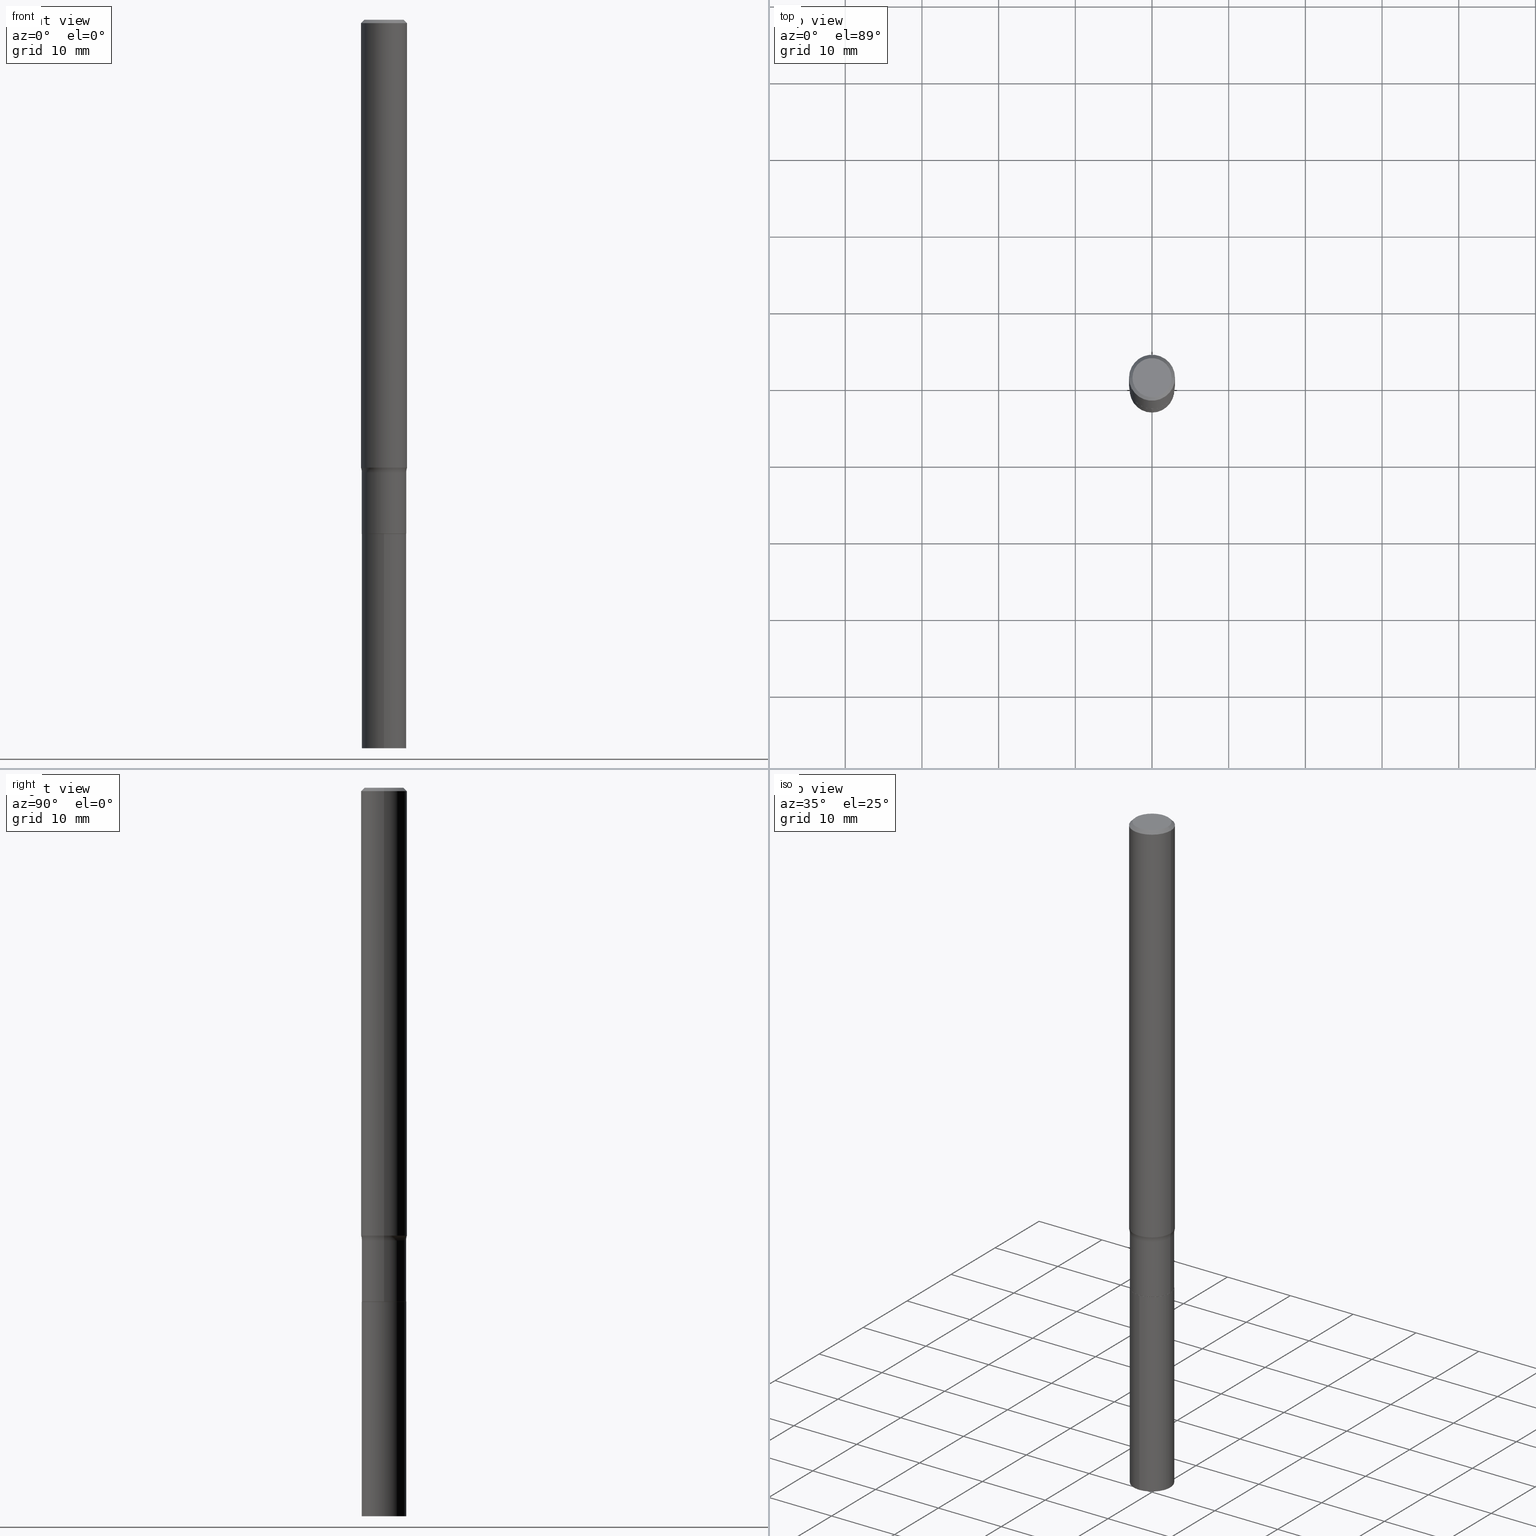
[diagram: canonical four-view strip — front | top / right | iso, engineering-drawing reading convention]
A machine part, canonical four-view strip (front | top / right | iso — engineering-drawing reading convention). The complete STEP part file that produces these views, byte-faithful:
ISO-10303-21;
HEADER;
FILE_DESCRIPTION (( 'STEP AP203' ),
    '1' );
FILE_NAME ('67844.STEP',
    '2024-04-19T16:42:29',
    ( '' ),
    ( '' ),
    'SwSTEP 2.0',
    'SolidWorks 2023',
    '' );
FILE_SCHEMA (( 'CONFIG_CONTROL_DESIGN' ));
ENDSEC;

DATA;
#1 = EDGE_CURVE ( 'NONE', #262, #442, #53, .T. ) ;
#2 = TOROIDAL_SURFACE ( 'NONE', #226, 0.1941499999999999893, 0.08000000000000002942 ) ;
#3 = CC_DESIGN_APPROVAL ( #343, ( #44 ) ) ;
#4 = EDGE_CURVE ( 'NONE', #384, #213, #346, .T. ) ;
#5 = ORIENTED_EDGE ( 'NONE', *, *, #102, .T. ) ;
#6 = ORIENTED_EDGE ( 'NONE', *, *, #310, .T. ) ;
#7 = CIRCLE ( 'NONE', #426, 0.1003850000000000159 ) ;
#8 = ORIENTED_EDGE ( 'NONE', *, *, #115, .T. ) ;
#9 = ADVANCED_FACE ( 'NONE', ( #234 ), #460, .T. ) ;
#10 = ORIENTED_EDGE ( 'NONE', *, *, #439, .F. ) ;
#11 = CIRCLE ( 'NONE', #69, 0.1141499999999999598 ) ;
#12 = AXIS2_PLACEMENT_3D ( 'NONE', #386, #210, #207 ) ;
#13 = CALENDAR_DATE ( 2024, 19, 4 ) ;
#14 = DIRECTION ( 'NONE',  ( -2.445468806185136597E-29, 3.491481338843145583E-15, 1.000000000000000000 ) ) ;
#15 = CC_DESIGN_DATE_AND_TIME_ASSIGNMENT ( #383, #117, ( #345 ) ) ;
#16 = DIRECTION ( 'NONE',  ( -2.445468806185136877E-29, 3.491481338843145188E-15, 1.000000000000000000 ) ) ;
#17 = FACE_OUTER_BOUND ( 'NONE', #169, .T. ) ;
#18 = EDGE_LOOP ( 'NONE', ( #409, #287, #411, #185 ) ) ;
#19 = COORDINATED_UNIVERSAL_TIME_OFFSET ( 5, 0, .BEHIND. ) ;
#20 = CIRCLE ( 'NONE', #429, 0.1141499999999999598 ) ;
#21 = PLANE ( 'NONE',  #219 ) ;
#22 = DIRECTION ( 'NONE',  ( 1.000000000000000000, -6.982962677686266711E-15, 4.876176775795935793E-29 ) ) ;
#23 = CARTESIAN_POINT ( 'NONE',  ( -0.1136500000000000010, -8.401045021770521406E-15, -2.638200000000000323 ) ) ;
#24 = ADVANCED_FACE ( 'NONE', ( #203 ), #177, .T. ) ;
#25 = MECHANICAL_CONTEXT ( 'NONE', #362, 'mechanical' ) ;
#26 = CARTESIAN_POINT ( 'NONE',  ( 6.451635804477628369E-29, -9.211226068135987462E-15, -2.638200000000000323 ) ) ;
#27 = ORIENTED_EDGE ( 'NONE', *, *, #298, .F. ) ;
#28 = CARTESIAN_POINT ( 'NONE',  ( 5.683269505574258330E-29, -8.114202631471472021E-15, -2.324000000000000288 ) ) ;
#29 = CARTESIAN_POINT ( 'NONE',  ( 3.507850874923593654E-46, -5.008281372579124849E-32, -1.434428795841294606E-17 ) ) ;
#30 = DIRECTION ( 'NONE',  ( -2.445468806185136597E-29, 3.491481338843145583E-15, 1.000000000000000000 ) ) ;
#31 = EDGE_LOOP ( 'NONE', ( #440, #447, #167, #8 ) ) ;
#32 = FACE_OUTER_BOUND ( 'NONE', #184, .T. ) ;
#33 = CARTESIAN_POINT ( 'NONE',  ( 0.1180999999999999966, -8.720764054544245267E-16, -0.01771500000000009872 ) ) ;
#34 = VECTOR ( 'NONE', #128, 39.37007874015748143 ) ;
#35 = EDGE_CURVE ( 'NONE', #384, #416, #7, .T. ) ;
#36 = MANIFOLD_SOLID_BREP ( 'Body-Move/Copy2[2]', #104 ) ;
#37 = ORIENTED_EDGE ( 'NONE', *, *, #231, .T. ) ;
#38 = VECTOR ( 'NONE', #452, 39.37007874015748143 ) ;
#39 = EDGE_CURVE ( 'NONE', #327, #150, #301, .T. ) ;
#40 = EDGE_LOOP ( 'NONE', ( #5, #422 ) ) ;
#41 = ORIENTED_EDGE ( 'NONE', *, *, #4, .T. ) ;
#42 = CARTESIAN_POINT ( 'NONE',  ( -0.1136500000000000010, -8.403694248944633396E-15, -2.638200000000000323 ) ) ;
#43 = APPROVAL_DATE_TIME ( #304, #343 ) ;
#44 = PRODUCT_DEFINITION ( 'UNKNOWN', '', #57, #326 ) ;
#45 = EDGE_LOOP ( 'NONE', ( #142, #260, #192, #180 ) ) ;
#46 = VECTOR ( 'NONE', #145, 39.37007874015748143 ) ;
#47 = ORIENTED_EDGE ( 'NONE', *, *, #68, .T. ) ;
#48 = DIRECTION ( 'NONE',  ( -2.445468806185136597E-29, 3.491481338843145583E-15, 1.000000000000000000 ) ) ;
#49 = DIRECTION ( 'NONE',  ( 1.000000000000000000, -6.982962677686268288E-15, 4.883557194083112901E-29 ) ) ;
#50 = CARTESIAN_POINT ( 'NONE',  ( 0.000000000000000000, 0.000000000000000000, 0.000000000000000000 ) ) ;
#51 = DIRECTION ( 'NONE',  ( -2.445468806185136597E-29, 3.491481338843145583E-15, 1.000000000000000000 ) ) ;
#52 = LINE ( 'NONE', #88, #34 ) ;
#53 = LINE ( 'NONE', #453, #307 ) ;
#54 = EDGE_CURVE ( 'NONE', #369, #327, #164, .T. ) ;
#55 = DIRECTION ( 'NONE',  ( -2.445468806185136597E-29, 3.491481338843145583E-15, 1.000000000000000000 ) ) ;
#56 = CONICAL_SURFACE ( 'NONE', #261, 0.1136500000000000010, 0.7853981633972775267 ) ;
#57 = PRODUCT_DEFINITION_FORMATION_WITH_SPECIFIED_SOURCE ( 'ANY', '', #160, .NOT_KNOWN. ) ;
#58 = CARTESIAN_POINT ( 'NONE',  ( 6.451635804477628369E-29, -9.211226068135987462E-15, -2.638200000000000323 ) ) ;
#59 = ORIENTED_EDGE ( 'NONE', *, *, #418, .T. ) ;
#60 = DIRECTION ( 'NONE',  ( 1.000000000000000000, -6.982962677686257244E-15, 0.000000000000000000 ) ) ;
#61 = CARTESIAN_POINT ( 'NONE',  ( 6.451635804477628369E-29, -9.211226068135987462E-15, -2.638200000000000323 ) ) ;
#62 = DIRECTION ( 'NONE',  ( -6.982962677686264344E-15, -1.000000000000000000, 4.786417860121354983E-15 ) ) ;
#63 = ORIENTED_EDGE ( 'NONE', *, *, #149, .F. ) ;
#64 = ADVANCED_FACE ( 'NONE', ( #83 ), #271, .F. ) ;
#65 = AXIS2_PLACEMENT_3D ( 'NONE', #122, #275, #427 ) ;
#66 = CC_DESIGN_APPROVAL ( #291, ( #345 ) ) ;
#67 = DIRECTION ( 'NONE',  ( -6.982962677686265922E-15, -1.000000000000000000, 3.500087051895992261E-15 ) ) ;
#68 = EDGE_CURVE ( 'NONE', #416, #384, #401, .T. ) ;
#69 = AXIS2_PLACEMENT_3D ( 'NONE', #95, #30, #281 ) ;
#70 = DIMENSIONAL_EXPONENTS ( 1.000000000000000000, 0.000000000000000000, 0.000000000000000000, 0.000000000000000000, 0.000000000000000000, 0.000000000000000000, 0.000000000000000000 ) ;
#71 = VECTOR ( 'NONE', #278, 39.37007874015748143 ) ;
#72 = VECTOR ( 'NONE', #464, 39.37007874015748143 ) ;
#73 = ORIENTED_EDGE ( 'NONE', *, *, #35, .T. ) ;
#74 = LINE ( 'NONE', #42, #121 ) ;
#75 = ADVANCED_FACE ( 'NONE', ( #424 ), #21, .F. ) ;
#76 = ORIENTED_EDGE ( 'NONE', *, *, #310, .F. ) ;
#77 = ORIENTED_EDGE ( 'NONE', *, *, #445, .T. ) ;
#78 = LOCAL_TIME ( 12, 42, 29.00000000000000000, #195 ) ;
#79 = EDGE_LOOP ( 'NONE', ( #238, #77, #360, #98 ) ) ;
#80 = APPROVAL_STATUS ( 'not_yet_approved' ) ;
#81 = DIRECTION ( 'NONE',  ( 1.000000000000000000, -6.982962677686266711E-15, 4.875668750515085695E-29 ) ) ;
#82 = LINE ( 'NONE', #302, #46 ) ;
#83 = FACE_OUTER_BOUND ( 'NONE', #125, .T. ) ;
#84 = AXIS2_PLACEMENT_3D ( 'NONE', #136, #309, #22 ) ;
#85 = LINE ( 'NONE', #425, #112 ) ;
#86 = ORIENTED_EDGE ( 'NONE', *, *, #288, .F. ) ;
#87 = DIRECTION ( 'NONE',  ( 1.000000000000000000, -6.982962677686266711E-15, 4.876176775795936353E-29 ) ) ;
#88 = CARTESIAN_POINT ( 'NONE',  ( 0.1181000000000001493, -8.246878922347491501E-16, 5.758764772215008148E-30 ) ) ;
#89 = DIRECTION ( 'NONE',  ( -1.000000000000000000, 6.982962677686266711E-15, 0.000000000000000000 ) ) ;
#90 = EDGE_CURVE ( 'NONE', #276, #150, #458, .T. ) ;
#91 = FACE_OUTER_BOUND ( 'NONE', #108, .T. ) ;
#92 = CARTESIAN_POINT ( 'NONE',  ( 6.451635804477628369E-29, -9.211226068135987462E-15, -2.638200000000000323 ) ) ;
#93 = AXIS2_PLACEMENT_3D ( 'NONE', #26, #353, #168 ) ;
#94 = FACE_OUTER_BOUND ( 'NONE', #146, .T. ) ;
#95 = CARTESIAN_POINT ( 'NONE',  ( 5.683269505574258330E-29, -8.114202631471472021E-15, -2.324000000000000288 ) ) ;
#96 = CC_DESIGN_PERSON_AND_ORGANIZATION_ASSIGNMENT ( #174, #404, ( #57 ) ) ;
#97 = CYLINDRICAL_SURFACE ( 'NONE', #65, 0.1141500000000000015 ) ;
#98 = ORIENTED_EDGE ( 'NONE', *, *, #1, .F. ) ;
#99 = AXIS2_PLACEMENT_3D ( 'NONE', #211, #244, #129 ) ;
#100 =( GEOMETRIC_REPRESENTATION_CONTEXT ( 3 ) GLOBAL_UNCERTAINTY_ASSIGNED_CONTEXT ( ( #365 ) ) GLOBAL_UNIT_ASSIGNED_CONTEXT ( ( #392, #315, #214 ) ) REPRESENTATION_CONTEXT ( 'NONE', 'WORKASPACE' ) );
#101 = LOCAL_TIME ( 12, 42, 29.00000000000000000, #272 ) ;
#102 = EDGE_CURVE ( 'NONE', #150, #276, #283, .T. ) ;
#103 = EDGE_LOOP ( 'NONE', ( #73, #47 ) ) ;
#104 = CLOSED_SHELL ( 'NONE', ( #393, #466, #259, #64, #455, #9, #268, #242, #24, #408, #359, #279 ) ) ;
#105 = VECTOR ( 'NONE', #289, 39.37007874015748143 ) ;
#106 = ORIENTED_EDGE ( 'NONE', *, *, #220, .F. ) ;
#107 = PRODUCT_RELATED_PRODUCT_CATEGORY ( 'detail', '', ( #160 ) ) ;
#108 = EDGE_LOOP ( 'NONE', ( #436, #295 ) ) ;
#109 = VERTEX_POINT ( 'NONE', #348 ) ;
#110 = CARTESIAN_POINT ( 'NONE',  ( 4.332147990156994116E-31, -6.185159191760666697E-17, -0.01771500000000009872 ) ) ;
#111 = PERSON_AND_ORGANIZATION_ROLE ( 'design_supplier' ) ;
#112 = VECTOR ( 'NONE', #381, 39.37007874015748143 ) ;
#113 = PERSON_AND_ORGANIZATION_ROLE ( 'creator' ) ;
#114 = CARTESIAN_POINT ( 'NONE',  ( 4.332147990156994116E-31, -6.185159191760666697E-17, -0.01771500000000009872 ) ) ;
#115 = EDGE_CURVE ( 'NONE', #442, #331, #11, .T. ) ;
#116 = LINE ( 'NONE', #300, #38 ) ;
#117 = DATE_TIME_ROLE ( 'classification_date' ) ;
#118 = CARTESIAN_POINT ( 'NONE',  ( -7.971051896578226363E-16, -0.1141500000000092024, -2.638199999999999878 ) ) ;
#119 = CALENDAR_DATE ( 2024, 19, 4 ) ;
#120 = DIRECTION ( 'NONE',  ( 6.982962677686265922E-15, 1.000000000000000000, -3.500087051895992261E-15 ) ) ;
#121 = VECTOR ( 'NONE', #154, 39.37007874015748143 ) ;
#122 = CARTESIAN_POINT ( 'NONE',  ( 6.451635804477628369E-29, -9.211226068135987462E-15, -2.638200000000000323 ) ) ;
#123 = ORIENTED_EDGE ( 'NONE', *, *, #1, .T. ) ;
#124 = DIRECTION ( 'NONE',  ( 1.000000000000000000, -6.982962677686266711E-15, 4.876176775795936353E-29 ) ) ;
#125 = EDGE_LOOP ( 'NONE', ( #155, #141, #6, #27 ) ) ;
#126 = DATE_AND_TIME ( #385, #375 ) ;
#127 = CARTESIAN_POINT ( 'NONE',  ( 6.451635804477628369E-29, -9.211226068135987462E-15, -2.638200000000000323 ) ) ;
#128 = DIRECTION ( 'NONE',  ( -2.445468806185136877E-29, 3.491481338843145188E-15, 1.000000000000000000 ) ) ;
#129 = DIRECTION ( 'NONE',  ( -6.982962677686264344E-15, -1.000000000000000000, 4.786417860121354983E-15 ) ) ;
#130 = EDGE_CURVE ( 'NONE', #332, #438, #364, .T. ) ;
#131 = CARTESIAN_POINT ( 'NONE',  ( -0.1141500000000000015, -7.850756946598864420E-15, -2.637700000000000156 ) ) ;
#132 = AXIS2_PLACEMENT_3D ( 'NONE', #312, #166, #124 ) ;
#133 = CARTESIAN_POINT ( 'NONE',  ( 8.110845328702459791E-16, 0.1141499999999908005, -2.638200000000000767 ) ) ;
#134 = CIRCLE ( 'NONE', #205, 0.1136500000000000010 ) ;
#135 = CARTESIAN_POINT ( 'NONE',  ( 0.1136500000000000010, -1.000483977645503217E-14, -2.638200000000000323 ) ) ;
#136 = CARTESIAN_POINT ( 'NONE',  ( 0.000000000000000000, 0.000000000000000000, 0.000000000000000000 ) ) ;
#137 = CARTESIAN_POINT ( 'NONE',  ( -3.354469140264243471E-29, -3.096099858396702516E-14, -3.740200000000000635 ) ) ;
#138 = CIRCLE ( 'NONE', #410, 0.1180999999999999966 ) ;
#139 = DIRECTION ( 'NONE',  ( -2.439459468878845651E-29, 3.500087051895992261E-15, 1.000000000000000000 ) ) ;
#140 = EDGE_CURVE ( 'NONE', #109, #213, #254, .T. ) ;
#141 = ORIENTED_EDGE ( 'NONE', *, *, #186, .T. ) ;
#142 = ORIENTED_EDGE ( 'NONE', *, *, #220, .T. ) ;
#143 = EDGE_CURVE ( 'NONE', #213, #109, #138, .T. ) ;
#144 = CIRCLE ( 'NONE', #178, 0.1141500000000000015 ) ;
#145 = DIRECTION ( 'NONE',  ( -2.445468806185136877E-29, 3.491481338843145188E-15, 1.000000000000000000 ) ) ;
#146 = EDGE_LOOP ( 'NONE', ( #377, #59, #63, #297 ) ) ;
#147 = DIRECTION ( 'NONE',  ( 1.000000000000000000, -6.982962677686271444E-15, 0.000000000000000000 ) ) ;
#148 = PERSON_AND_ORGANIZATION_ROLE ( 'design_owner' ) ;
#149 = EDGE_CURVE ( 'NONE', #262, #461, #144, .T. ) ;
#150 = VERTEX_POINT ( 'NONE', #299 ) ;
#151 = AXIS2_PLACEMENT_3D ( 'NONE', #114, #230, #89 ) ;
#152 = DIRECTION ( 'NONE',  ( 1.000000000000000000, -6.982962677686264344E-15, 0.000000000000000000 ) ) ;
#153 = CIRCLE ( 'NONE', #358, 0.1141500000000000153 ) ;
#154 = DIRECTION ( 'NONE',  ( -0.7071067811864267805, 7.493145998869918709E-15, 0.7071067811866682540 ) ) ;
#155 = ORIENTED_EDGE ( 'NONE', *, *, #130, .F. ) ;
#156 = CARTESIAN_POINT ( 'NONE',  ( 0.1181000000000002881, -8.852206280989350108E-15, -2.299172646133749609 ) ) ;
#157 = FACE_OUTER_BOUND ( 'NONE', #31, .T. ) ;
#158 = DATE_AND_TIME ( #305, #319 ) ;
#159 = CARTESIAN_POINT ( 'NONE',  ( 5.683269505574258330E-29, -8.114202631471472021E-15, -2.324000000000000288 ) ) ;
#160 = PRODUCT ( '67844', '67844', '', ( #25 ) ) ;
#161 = CARTESIAN_POINT ( 'NONE',  ( 5.622554986154221751E-29, -8.027518388754600268E-15, -2.299172646133749609 ) ) ;
#162 = PERSON_AND_ORGANIZATION ( #354, #285 ) ;
#163 = ORIENTED_EDGE ( 'NONE', *, *, #35, .F. ) ;
#164 = CIRCLE ( 'NONE', #190, 0.1141500000000000153 ) ;
#165 = AXIS2_PLACEMENT_3D ( 'NONE', #380, #200, #342 ) ;
#166 = DIRECTION ( 'NONE',  ( -2.445468806185136597E-29, 3.491481338843145583E-15, 1.000000000000000000 ) ) ;
#167 = ORIENTED_EDGE ( 'NONE', *, *, #298, .T. ) ;
#168 = DIRECTION ( 'NONE',  ( 1.000000000000000000, -6.982962677686269077E-15, 0.000000000000000000 ) ) ;
#169 = EDGE_LOOP ( 'NONE', ( #252, #37, #356, #434 ) ) ;
#170 = FACE_OUTER_BOUND ( 'NONE', #18, .T. ) ;
#171 = CARTESIAN_POINT ( 'NONE',  ( 8.110845328702322726E-16, 0.1141499999999869563, -3.740200000000001079 ) ) ;
#172 = APPROVAL_ROLE ( '' ) ;
#173 = ORIENTED_EDGE ( 'NONE', *, *, #228, .T. ) ;
#174 = PERSON_AND_ORGANIZATION ( #354, #285 ) ;
#175 = CC_DESIGN_DATE_AND_TIME_ASSIGNMENT ( #225, #413, ( #44 ) ) ;
#176 = DIRECTION ( 'NONE',  ( -2.439459468878846212E-29, 3.500087051895991866E-15, 1.000000000000000000 ) ) ;
#177 = CONICAL_SURFACE ( 'NONE', #151, 0.1180999999999999966, 0.7853981633974458365 ) ;
#178 = AXIS2_PLACEMENT_3D ( 'NONE', #204, #391, #152 ) ;
#179 = CC_DESIGN_PERSON_AND_ORGANIZATION_ASSIGNMENT ( #189, #113, ( #44 ) ) ;
#180 = ORIENTED_EDGE ( 'NONE', *, *, #39, .F. ) ;
#181 = EDGE_LOOP ( 'NONE', ( #10, #306, #468, #405 ) ) ;
#182 = DIRECTION ( 'NONE',  ( 1.000000000000000000, -6.982962677686264344E-15, 0.000000000000000000 ) ) ;
#183 = AXIS2_PLACEMENT_3D ( 'NONE', #341, #414, #81 ) ;
#184 = EDGE_LOOP ( 'NONE', ( #106, #321 ) ) ;
#185 = ORIENTED_EDGE ( 'NONE', *, *, #325, .F. ) ;
#186 = EDGE_CURVE ( 'NONE', #332, #331, #292, .T. ) ;
#187 = PERSON_AND_ORGANIZATION ( #354, #285 ) ;
#188 = APPROVAL_ROLE ( '' ) ;
#189 = PERSON_AND_ORGANIZATION ( #354, #285 ) ;
#190 = AXIS2_PLACEMENT_3D ( 'NONE', #266, #270, #199 ) ;
#191 = PERSON_AND_ORGANIZATION ( #354, #285 ) ;
#192 = ORIENTED_EDGE ( 'NONE', *, *, #102, .F. ) ;
#193 = AXIS2_PLACEMENT_3D ( 'NONE', #161, #233, #215 ) ;
#194 = LOCAL_TIME ( 12, 42, 29.00000000000000000, #264 ) ;
#195 = COORDINATED_UNIVERSAL_TIME_OFFSET ( 5, 0, .BEHIND. ) ;
#196 = DIRECTION ( 'NONE',  ( 1.000000000000000000, -6.982962677686266711E-15, 4.876176775795935793E-29 ) ) ;
#197 = APPROVAL ( #80, 'UNSPECIFIED' ) ;
#198 = LENGTH_MEASURE_WITH_UNIT ( LENGTH_MEASURE( 0.02539999999999999897 ), #462 );
#199 = DIRECTION ( 'NONE',  ( -6.982962677686265922E-15, -1.000000000000000000, 4.786417860121354194E-15 ) ) ;
#200 = DIRECTION ( 'NONE',  ( 0.000000000000000000, 0.000000000000000000, 1.000000000000000000 ) ) ;
#201 = DIRECTION ( 'NONE',  ( 1.000000000000000000, -6.982962677686269077E-15, 0.000000000000000000 ) ) ;
#202 = CYLINDRICAL_SURFACE ( 'NONE', #390, 0.1141500000000000015 ) ;
#203 = FACE_OUTER_BOUND ( 'NONE', #256, .T. ) ;
#204 = CARTESIAN_POINT ( 'NONE',  ( 6.450413070074535567E-29, -9.209480327466565169E-15, -2.637700000000000156 ) ) ;
#205 = AXIS2_PLACEMENT_3D ( 'NONE', #212, #318, #349 ) ;
#206 = APPROVAL_PERSON_ORGANIZATION ( #187, #343, #449 ) ;
#207 = DIRECTION ( 'NONE',  ( 1.000000000000000000, -6.982962677686269077E-15, 0.000000000000000000 ) ) ;
#208 = CARTESIAN_POINT ( 'NONE',  ( -0.1141499999999999598, -7.850756946598864420E-15, -2.324000000000000288 ) ) ;
#209 = ORIENTED_EDGE ( 'NONE', *, *, #431, .T. ) ;
#210 = DIRECTION ( 'NONE',  ( -2.445468806185136597E-29, 3.491481338843145583E-15, 1.000000000000000000 ) ) ;
#211 = CARTESIAN_POINT ( 'NONE',  ( 6.451635804477628369E-29, -9.211226068135987462E-15, -2.638200000000000323 ) ) ;
#212 = CARTESIAN_POINT ( 'NONE',  ( 6.451635804477628369E-29, -9.211226068135987462E-15, -2.638200000000000323 ) ) ;
#213 = VERTEX_POINT ( 'NONE', #248 ) ;
#214 =( NAMED_UNIT ( * ) SI_UNIT ( $, .STERADIAN. ) SOLID_ANGLE_UNIT ( ) );
#215 = DIRECTION ( 'NONE',  ( 1.000000000000000000, -6.982962677686271444E-15, 0.000000000000000000 ) ) ;
#216 = CLOSED_SHELL ( 'NONE', ( #357, #412, #379, #75 ) ) ;
#217 = DIRECTION ( 'NONE',  ( -1.000000000000000000, 7.105427357601008170E-15, 0.000000000000000000 ) ) ;
#218 = CARTESIAN_POINT ( 'NONE',  ( 0.1003850000000000159, -7.803837484803599345E-16, -2.868857591682071522E-17 ) ) ;
#219 = AXIS2_PLACEMENT_3D ( 'NONE', #92, #240, #120 ) ;
#220 = EDGE_CURVE ( 'NONE', #327, #369, #153, .T. ) ;
#221 = CIRCLE ( 'NONE', #193, 0.1181000000000003020 ) ;
#222 = CC_DESIGN_APPROVAL ( #197, ( #57 ) ) ;
#223 = ORIENTED_EDGE ( 'NONE', *, *, #231, .F. ) ;
#224 = DIRECTION ( 'NONE',  ( -2.445468806185136597E-29, 3.491481338843145583E-15, 1.000000000000000000 ) ) ;
#225 = DATE_AND_TIME ( #456, #194 ) ;
#226 = AXIS2_PLACEMENT_3D ( 'NONE', #463, #55, #49 ) ;
#227 = ORIENTED_EDGE ( 'NONE', *, *, #445, .F. ) ;
#228 = EDGE_CURVE ( 'NONE', #294, #361, #134, .T. ) ;
#229 = PERSON_AND_ORGANIZATION_ROLE ( 'classification_officer' ) ;
#230 = DIRECTION ( 'NONE',  ( 2.445468806185136597E-29, -3.491481338843145583E-15, -1.000000000000000000 ) ) ;
#231 = EDGE_CURVE ( 'NONE', #416, #109, #433, .T. ) ;
#232 = CARTESIAN_POINT ( 'NONE',  ( 0.1141500000000000015, -1.000658551712445131E-14, -2.637700000000000156 ) ) ;
#233 = DIRECTION ( 'NONE',  ( -2.445468806185136597E-29, 3.491481338843145583E-15, 1.000000000000000000 ) ) ;
#234 = FACE_OUTER_BOUND ( 'NONE', #311, .T. ) ;
#235 = FACE_OUTER_BOUND ( 'NONE', #337, .T. ) ;
#236 = DIRECTION ( 'NONE',  ( 1.000000000000000000, -6.982962677686265922E-15, 4.876176775795935793E-29 ) ) ;
#237 = APPROVAL_DATE_TIME ( #158, #291 ) ;
#238 = ORIENTED_EDGE ( 'NONE', *, *, #149, .T. ) ;
#239 = DIRECTION ( 'NONE',  ( -6.982962677686264344E-15, -1.000000000000000000, 4.786417860121354983E-15 ) ) ;
#240 = DIRECTION ( 'NONE',  ( 2.439459468878845651E-29, -3.500087051895992261E-15, -1.000000000000000000 ) ) ;
#241 = AXIS2_PLACEMENT_3D ( 'NONE', #451, #415, #217 ) ;
#242 = ADVANCED_FACE ( 'NONE', ( #435 ), #352, .T. ) ;
#243 = CARTESIAN_POINT ( 'NONE',  ( 0.1136500000000000010, -1.000483977645503217E-14, -2.638200000000000323 ) ) ;
#244 = DIRECTION ( 'NONE',  ( -2.439459468878846212E-29, 3.500087051895991866E-15, 1.000000000000000000 ) ) ;
#245 = DIRECTION ( 'NONE',  ( -2.445468806185136597E-29, 3.491481338843145583E-15, 1.000000000000000000 ) ) ;
#246 = LINE ( 'NONE', #135, #72 ) ;
#247 = CC_DESIGN_PERSON_AND_ORGANIZATION_ASSIGNMENT ( #191, #111, ( #57 ) ) ;
#248 = CARTESIAN_POINT ( 'NONE',  ( -0.1180999999999999966, -3.205534019403422275E-15, -0.01771500000000009872 ) ) ;
#249 = AXIS2_PLACEMENT_3D ( 'NONE', #428, #396, #62 ) ;
#250 = AXIS2_PLACEMENT_3D ( 'NONE', #347, #284, #398 ) ;
#251 = PRODUCT_DEFINITION_SHAPE ( 'NONE', 'NONE',  #44 ) ;
#252 = ORIENTED_EDGE ( 'NONE', *, *, #68, .F. ) ;
#253 = APPROVAL_DATE_TIME ( #126, #197 ) ;
#254 = CIRCLE ( 'NONE', #373, 0.1180999999999999966 ) ;
#255 = AXIS2_PLACEMENT_3D ( 'NONE', #137, #139, #67 ) ;
#256 = EDGE_LOOP ( 'NONE', ( #223, #163, #41, #419 ) ) ;
#257 = ORIENTED_EDGE ( 'NONE', *, *, #418, .F. ) ;
#258 = FACE_OUTER_BOUND ( 'NONE', #79, .T. ) ;
#259 = ADVANCED_FACE ( 'NONE', ( #170 ), #274, .T. ) ;
#260 = ORIENTED_EDGE ( 'NONE', *, *, #288, .T. ) ;
#261 = AXIS2_PLACEMENT_3D ( 'NONE', #127, #51, #201 ) ;
#262 = VERTEX_POINT ( 'NONE', #232 ) ;
#263 = CC_DESIGN_SECURITY_CLASSIFICATION ( #345, ( #57 ) ) ;
#264 = COORDINATED_UNIVERSAL_TIME_OFFSET ( 5, 0, .BEHIND. ) ;
#265 = SHAPE_DEFINITION_REPRESENTATION ( #251, #370 ) ;
#266 = CARTESIAN_POINT ( 'NONE',  ( 9.139920139182118548E-29, -1.306832199932537301E-14, -3.740200000000000635 ) ) ;
#267 = CARTESIAN_POINT ( 'NONE',  ( 0.1141499999999999598, -8.911307821129359738E-15, -2.324000000000000288 ) ) ;
#268 = ADVANCED_FACE ( 'NONE', ( #157 ), #2, .F. ) ;
#269 = PERSON_AND_ORGANIZATION ( #354, #285 ) ;
#270 = DIRECTION ( 'NONE',  ( -2.439459468878846212E-29, 3.500087051895991866E-15, 1.000000000000000000 ) ) ;
#271 = TOROIDAL_SURFACE ( 'NONE', #467, 0.1941499999999999893, 0.08000000000000002942 ) ;
#272 = COORDINATED_UNIVERSAL_TIME_OFFSET ( 5, 0, .BEHIND. ) ;
#273 = ORIENTED_EDGE ( 'NONE', *, *, #431, .F. ) ;
#274 = CYLINDRICAL_SURFACE ( 'NONE', #448, 0.1181000000000001493 ) ;
#275 = DIRECTION ( 'NONE',  ( -2.439459468878846212E-29, 3.500087051895991866E-15, 1.000000000000000000 ) ) ;
#276 = VERTEX_POINT ( 'NONE', #133 ) ;
#277 = CARTESIAN_POINT ( 'NONE',  ( -0.1181000000000002881, -7.188367417821919704E-15, -2.299172646133749609 ) ) ;
#278 = DIRECTION ( 'NONE',  ( -2.439459468878846492E-29, 3.500087051895992261E-15, 1.000000000000000000 ) ) ;
#279 = ADVANCED_FACE ( 'NONE', ( #235 ), #56, .T. ) ;
#280 = CARTESIAN_POINT ( 'NONE',  ( -7.971051896577959137E-16, -0.1141500000000130743, -3.740200000000000191 ) ) ;
#281 = DIRECTION ( 'NONE',  ( 1.000000000000000000, -6.982962677686267499E-15, 0.000000000000000000 ) ) ;
#282 = DIRECTION ( 'NONE',  ( -6.982962677686265922E-15, -1.000000000000000000, 4.786417860121354194E-15 ) ) ;
#283 = CIRCLE ( 'NONE', #99, 0.1141500000000000015 ) ;
#284 = DIRECTION ( 'NONE',  ( 2.445468806185136597E-29, -3.491481338843145583E-15, -1.000000000000000000 ) ) ;
#285 = ORGANIZATION ( 'UNSPECIFIED', 'UNSPECIFIED', '' ) ;
#286 = DIRECTION ( 'NONE',  ( -1.000000000000000000, 6.982962677686265922E-15, -4.876176775795935793E-29 ) ) ;
#287 = ORIENTED_EDGE ( 'NONE', *, *, #439, .T. ) ;
#288 = EDGE_CURVE ( 'NONE', #369, #276, #85, .T. ) ;
#289 = DIRECTION ( 'NONE',  ( 0.7071067811865457964, -7.319954787623249734E-15, -0.7071067811865492381 ) ) ;
#290 = AXIS2_PLACEMENT_3D ( 'NONE', #399, #394, #60 ) ;
#291 = APPROVAL ( #376, 'UNSPECIFIED' ) ;
#292 = CIRCLE ( 'NONE', #241, 0.08000000000000002942 ) ;
#293 = EDGE_CURVE ( 'NONE', #361, #294, #407, .T. ) ;
#294 = VERTEX_POINT ( 'NONE', #23 ) ;
#295 = ORIENTED_EDGE ( 'NONE', *, *, #228, .F. ) ;
#296 = APPLICATION_PROTOCOL_DEFINITION ( 'international standard', 'config_control_design', 1994, #303 ) ;
#297 = ORIENTED_EDGE ( 'NONE', *, *, #403, .F. ) ;
#298 = EDGE_CURVE ( 'NONE', #438, #442, #374, .T. ) ;
#299 = CARTESIAN_POINT ( 'NONE',  ( -7.971051896578226363E-16, -0.1141500000000092024, -2.638199999999999878 ) ) ;
#300 = CARTESIAN_POINT ( 'NONE',  ( -0.1181000000000001493, 8.391509709326793804E-16, -5.809262341591050790E-30 ) ) ;
#301 = LINE ( 'NONE', #118, #71 ) ;
#302 = CARTESIAN_POINT ( 'NONE',  ( -0.1141499999999999737, 8.110845328701541754E-16, -5.614964405525973971E-30 ) ) ;
#303 = APPLICATION_CONTEXT ( 'configuration controlled 3d designs of mechanical parts and assemblies' ) ;
#304 = DATE_AND_TIME ( #119, #78 ) ;
#305 = CALENDAR_DATE ( 2024, 19, 4 ) ;
#306 = ORIENTED_EDGE ( 'NONE', *, *, #130, .T. ) ;
#307 = VECTOR ( 'NONE', #16, 39.37007874015748143 ) ;
#308 = CARTESIAN_POINT ( 'NONE',  ( -0.1180999999999999966, 7.628363003171413738E-16, -0.01771500000000009872 ) ) ;
#309 = DIRECTION ( 'NONE',  ( -2.445468806185136597E-29, 3.491481338843145583E-15, 1.000000000000000000 ) ) ;
#310 = EDGE_CURVE ( 'NONE', #331, #442, #20, .T. ) ;
#311 = EDGE_LOOP ( 'NONE', ( #227, #209, #123, #76 ) ) ;
#312 = CARTESIAN_POINT ( 'NONE',  ( 0.000000000000000000, 0.000000000000000000, 0.000000000000000000 ) ) ;
#313 = FACE_OUTER_BOUND ( 'NONE', #103, .T. ) ;
#314 = CARTESIAN_POINT ( 'NONE',  ( 5.622554986154221751E-29, -8.027518388754600268E-15, -2.299172646133749609 ) ) ;
#315 =( NAMED_UNIT ( * ) PLANE_ANGLE_UNIT ( ) SI_UNIT ( $, .RADIAN. ) );
#316 = DIRECTION ( 'NONE',  ( -2.445468806185136597E-29, 3.491481338843145583E-15, 1.000000000000000000 ) ) ;
#317 = DIRECTION ( 'NONE',  ( 2.438088387897960049E-29, -3.491481338843145188E-15, -1.000000000000000000 ) ) ;
#318 = DIRECTION ( 'NONE',  ( -2.445468806185136597E-29, 3.491481338843145583E-15, 1.000000000000000000 ) ) ;
#319 = LOCAL_TIME ( 12, 42, 29.00000000000000000, #338 ) ;
#320 = DIRECTION ( 'NONE',  ( 1.000000000000000000, -6.982962677686267499E-15, 0.000000000000000000 ) ) ;
#321 = ORIENTED_EDGE ( 'NONE', *, *, #54, .F. ) ;
#322 = PLANE ( 'NONE',  #255 ) ;
#323 = VECTOR ( 'NONE', #450, 39.37007874015748143 ) ;
#324 = AXIS2_PLACEMENT_3D ( 'NONE', #61, #388, #236 ) ;
#325 = EDGE_CURVE ( 'NONE', #438, #109, #52, .T. ) ;
#326 = DESIGN_CONTEXT ( 'detailed design', #303, 'design' ) ;
#327 = VERTEX_POINT ( 'NONE', #280 ) ;
#328 = DIRECTION ( 'NONE',  ( -2.445468806185136597E-29, 3.491481338843145583E-15, 1.000000000000000000 ) ) ;
#329 = CIRCLE ( 'NONE', #402, 0.1141500000000000015 ) ;
#330 = ORIENTED_EDGE ( 'NONE', *, *, #39, .T. ) ;
#331 = VERTEX_POINT ( 'NONE', #208 ) ;
#332 = VERTEX_POINT ( 'NONE', #277 ) ;
#333 = AXIS2_PLACEMENT_3D ( 'NONE', #314, #465, #147 ) ;
#334 = PERSON_AND_ORGANIZATION ( #354, #285 ) ;
#335 = AXIS2_PLACEMENT_3D ( 'NONE', #29, #317, #286 ) ;
#336 = EDGE_CURVE ( 'NONE', #438, #332, #221, .T. ) ;
#337 = EDGE_LOOP ( 'NONE', ( #257, #173, #367, #273 ) ) ;
#338 = COORDINATED_UNIVERSAL_TIME_OFFSET ( 5, 0, .BEHIND. ) ;
#339 = DIRECTION ( 'NONE',  ( -2.445468806185136597E-29, 3.491481338843145583E-15, 1.000000000000000000 ) ) ;
#340 = APPLICATION_PROTOCOL_DEFINITION ( 'international standard', 'config_control_design', 1994, #362 ) ;
#341 = CARTESIAN_POINT ( 'NONE',  ( 7.015701749847187307E-46, -1.001656274515824970E-31, -2.868857591682589212E-17 ) ) ;
#342 = DIRECTION ( 'NONE',  ( 1.000000000000000000, 0.000000000000000000, 0.000000000000000000 ) ) ;
#343 = APPROVAL ( #444, 'UNSPECIFIED' ) ;
#344 = DIRECTION ( 'NONE',  ( -2.445468806185136597E-29, 3.491481338843145583E-15, 1.000000000000000000 ) ) ;
#345 = SECURITY_CLASSIFICATION ( '', '', #446 ) ;
#346 = LINE ( 'NONE', #308, #323 ) ;
#347 = CARTESIAN_POINT ( 'NONE',  ( 4.332147990156994116E-31, -6.185159191760666697E-17, -0.01771500000000009872 ) ) ;
#348 = CARTESIAN_POINT ( 'NONE',  ( 0.1180999999999999966, -8.865394841523547570E-16, -0.01771500000000009872 ) ) ;
#349 = DIRECTION ( 'NONE',  ( 1.000000000000000000, -6.982962677686269077E-15, 0.000000000000000000 ) ) ;
#350 = ORIENTED_EDGE ( 'NONE', *, *, #90, .F. ) ;
#351 = MANIFOLD_SOLID_BREP ( 'Body-Move/Copy2[1]', #216 ) ;
#352 = CYLINDRICAL_SURFACE ( 'NONE', #132, 0.1181000000000001493 ) ;
#353 = DIRECTION ( 'NONE',  ( -2.445468806185136597E-29, 3.491481338843145583E-15, 1.000000000000000000 ) ) ;
#354 = PERSON ( 'UNSPECIFIED', 'UNSPECIFIED', 'UNSPECIFIED', ('UNSPECIFIED'), ('UNSPECIFIED'), ('UNSPECIFIED') ) ;
#355 = CARTESIAN_POINT ( 'NONE',  ( 9.139920139182118548E-29, -1.306832199932537301E-14, -3.740200000000000635 ) ) ;
#356 = ORIENTED_EDGE ( 'NONE', *, *, #140, .T. ) ;
#357 = ADVANCED_FACE ( 'NONE', ( #432 ), #97, .T. ) ;
#358 = AXIS2_PLACEMENT_3D ( 'NONE', #355, #176, #282 ) ;
#359 = ADVANCED_FACE ( 'NONE', ( #91 ), #421, .F. ) ;
#360 = ORIENTED_EDGE ( 'NONE', *, *, #115, .F. ) ;
#361 = VERTEX_POINT ( 'NONE', #243 ) ;
#362 = APPLICATION_CONTEXT ( 'configuration controlled 3d designs of mechanical parts and assemblies' ) ;
#363 = CYLINDRICAL_SURFACE ( 'NONE', #84, 0.1141499999999999737 ) ;
#364 = CIRCLE ( 'NONE', #333, 0.1181000000000003020 ) ;
#365 = UNCERTAINTY_MEASURE_WITH_UNIT (LENGTH_MEASURE( 1.000000000000000082E-05 ), #392, 'distance_accuracy_value', 'NONE');
#366 = APPROVAL_PERSON_ORGANIZATION ( #269, #291, #188 ) ;
#367 = ORIENTED_EDGE ( 'NONE', *, *, #403, .T. ) ;
#368 = PERSON_AND_ORGANIZATION ( #354, #285 ) ;
#369 = VERTEX_POINT ( 'NONE', #171 ) ;
#370 = ADVANCED_BREP_SHAPE_REPRESENTATION ( '67844', ( #351, #36, #165 ), #100 ) ;
#371 = CC_DESIGN_PERSON_AND_ORGANIZATION_ASSIGNMENT ( #162, #229, ( #345 ) ) ;
#372 = DIRECTION ( 'NONE',  ( 1.000000000000000000, -6.982962677686266711E-15, 4.875668750515085695E-29 ) ) ;
#373 = AXIS2_PLACEMENT_3D ( 'NONE', #406, #328, #443 ) ;
#374 = CIRCLE ( 'NONE', #290, 0.08000000000000002942 ) ;
#375 = LOCAL_TIME ( 12, 42, 29.00000000000000000, #19 ) ;
#376 = APPROVAL_STATUS ( 'not_yet_approved' ) ;
#377 = ORIENTED_EDGE ( 'NONE', *, *, #293, .T. ) ;
#378 = CARTESIAN_POINT ( 'NONE',  ( 7.015701749847187307E-46, -1.001656274515824970E-31, -2.868857591682589212E-17 ) ) ;
#379 = ADVANCED_FACE ( 'NONE', ( #382 ), #202, .T. ) ;
#380 = CARTESIAN_POINT ( 'NONE',  ( 0.000000000000000000, 0.000000000000000000, 0.000000000000000000 ) ) ;
#381 = DIRECTION ( 'NONE',  ( -2.439459468878846492E-29, 3.500087051895992261E-15, 1.000000000000000000 ) ) ;
#382 = FACE_OUTER_BOUND ( 'NONE', #389, .T. ) ;
#383 = DATE_AND_TIME ( #13, #101 ) ;
#384 = VERTEX_POINT ( 'NONE', #395 ) ;
#385 = CALENDAR_DATE ( 2024, 19, 4 ) ;
#386 = CARTESIAN_POINT ( 'NONE',  ( 6.451635804477628369E-29, -9.211226068135987462E-15, -2.638200000000000323 ) ) ;
#387 = AXIS2_PLACEMENT_3D ( 'NONE', #50, #14, #196 ) ;
#388 = DIRECTION ( 'NONE',  ( -2.438088387897960049E-29, 3.491481338843145188E-15, 1.000000000000000000 ) ) ;
#389 = EDGE_LOOP ( 'NONE', ( #86, #397, #330, #350 ) ) ;
#390 = AXIS2_PLACEMENT_3D ( 'NONE', #58, #423, #239 ) ;
#391 = DIRECTION ( 'NONE',  ( -2.445468806185136597E-29, 3.491481338843145583E-15, 1.000000000000000000 ) ) ;
#392 =( CONVERSION_BASED_UNIT ( 'INCH', #198 ) LENGTH_UNIT ( ) NAMED_UNIT ( #70 ) );
#393 = ADVANCED_FACE ( 'NONE', ( #94 ), #441, .T. ) ;
#394 = DIRECTION ( 'NONE',  ( -6.982962677686266711E-15, -1.000000000000000000, 3.491481338843145583E-15 ) ) ;
#395 = CARTESIAN_POINT ( 'NONE',  ( -0.1003850000000000159, 7.319105043583386689E-16, -2.868857591683090262E-17 ) ) ;
#396 = DIRECTION ( 'NONE',  ( -2.439459468878846212E-29, 3.500087051895991866E-15, 1.000000000000000000 ) ) ;
#397 = ORIENTED_EDGE ( 'NONE', *, *, #54, .T. ) ;
#398 = DIRECTION ( 'NONE',  ( -1.000000000000000000, 6.982962677686266711E-15, 0.000000000000000000 ) ) ;
#399 = CARTESIAN_POINT ( 'NONE',  ( 0.1941499999999999893, -9.469944835344259813E-15, -2.324000000000000288 ) ) ;
#400 = PLANE ( 'NONE',  #335 ) ;
#401 = CIRCLE ( 'NONE', #183, 0.1003850000000000159 ) ;
#402 = AXIS2_PLACEMENT_3D ( 'NONE', #454, #224, #182 ) ;
#403 = EDGE_CURVE ( 'NONE', #361, #262, #246, .T. ) ;
#404 = PERSON_AND_ORGANIZATION_ROLE ( 'creator' ) ;
#405 = ORIENTED_EDGE ( 'NONE', *, *, #143, .F. ) ;
#406 = CARTESIAN_POINT ( 'NONE',  ( 4.332147990156994116E-31, -6.185159191760666697E-17, -0.01771500000000009872 ) ) ;
#407 = CIRCLE ( 'NONE', #12, 0.1136500000000000010 ) ;
#408 = ADVANCED_FACE ( 'NONE', ( #313 ), #400, .F. ) ;
#409 = ORIENTED_EDGE ( 'NONE', *, *, #336, .T. ) ;
#410 = AXIS2_PLACEMENT_3D ( 'NONE', #110, #48, #420 ) ;
#411 = ORIENTED_EDGE ( 'NONE', *, *, #140, .F. ) ;
#412 = ADVANCED_FACE ( 'NONE', ( #32 ), #322, .F. ) ;
#413 = DATE_TIME_ROLE ( 'creation_date' ) ;
#414 = DIRECTION ( 'NONE',  ( -2.445468806185136597E-29, 3.491481338843145583E-15, 1.000000000000000000 ) ) ;
#415 = DIRECTION ( 'NONE',  ( 7.105427357601001859E-15, 1.000000000000000000, -3.491481338843145583E-15 ) ) ;
#416 = VERTEX_POINT ( 'NONE', #218 ) ;
#417 = CARTESIAN_POINT ( 'NONE',  ( 0.000000000000000000, 0.000000000000000000, 0.000000000000000000 ) ) ;
#418 = EDGE_CURVE ( 'NONE', #294, #461, #74, .T. ) ;
#419 = ORIENTED_EDGE ( 'NONE', *, *, #143, .T. ) ;
#420 = DIRECTION ( 'NONE',  ( 1.000000000000000000, -6.982962677686266711E-15, 0.000000000000000000 ) ) ;
#421 = PLANE ( 'NONE',  #324 ) ;
#422 = ORIENTED_EDGE ( 'NONE', *, *, #90, .T. ) ;
#423 = DIRECTION ( 'NONE',  ( -2.439459468878846212E-29, 3.500087051895991866E-15, 1.000000000000000000 ) ) ;
#424 = FACE_OUTER_BOUND ( 'NONE', #40, .T. ) ;
#425 = CARTESIAN_POINT ( 'NONE',  ( 8.110845328702187634E-16, 0.1141499999999908005, -2.638200000000000767 ) ) ;
#426 = AXIS2_PLACEMENT_3D ( 'NONE', #378, #344, #372 ) ;
#427 = DIRECTION ( 'NONE',  ( -6.982962677686264344E-15, -1.000000000000000000, 4.786417860121354983E-15 ) ) ;
#428 = CARTESIAN_POINT ( 'NONE',  ( 6.451635804477628369E-29, -9.211226068135987462E-15, -2.638200000000000323 ) ) ;
#429 = AXIS2_PLACEMENT_3D ( 'NONE', #28, #316, #320 ) ;
#430 = APPROVAL_PERSON_ORGANIZATION ( #334, #197, #172 ) ;
#431 = EDGE_CURVE ( 'NONE', #461, #262, #329, .T. ) ;
#432 = FACE_OUTER_BOUND ( 'NONE', #45, .T. ) ;
#433 = LINE ( 'NONE', #33, #105 ) ;
#434 = ORIENTED_EDGE ( 'NONE', *, *, #4, .F. ) ;
#435 = FACE_OUTER_BOUND ( 'NONE', #181, .T. ) ;
#436 = ORIENTED_EDGE ( 'NONE', *, *, #293, .F. ) ;
#437 = CC_DESIGN_PERSON_AND_ORGANIZATION_ASSIGNMENT ( #368, #148, ( #160 ) ) ;
#438 = VERTEX_POINT ( 'NONE', #156 ) ;
#439 = EDGE_CURVE ( 'NONE', #332, #213, #116, .T. ) ;
#440 = ORIENTED_EDGE ( 'NONE', *, *, #186, .F. ) ;
#441 = CONICAL_SURFACE ( 'NONE', #93, 0.1136500000000000010, 0.7853981633972775267 ) ;
#442 = VERTEX_POINT ( 'NONE', #267 ) ;
#443 = DIRECTION ( 'NONE',  ( 1.000000000000000000, -6.982962677686266711E-15, 0.000000000000000000 ) ) ;
#444 = APPROVAL_STATUS ( 'not_yet_approved' ) ;
#445 = EDGE_CURVE ( 'NONE', #461, #331, #82, .T. ) ;
#446 = SECURITY_CLASSIFICATION_LEVEL ( 'unclassified' ) ;
#447 = ORIENTED_EDGE ( 'NONE', *, *, #336, .F. ) ;
#448 = AXIS2_PLACEMENT_3D ( 'NONE', #417, #245, #87 ) ;
#449 = APPROVAL_ROLE ( '' ) ;
#450 = DIRECTION ( 'NONE',  ( -0.7071067811865457964, 2.468850131082238917E-15, -0.7071067811865492381 ) ) ;
#451 = CARTESIAN_POINT ( 'NONE',  ( -0.1941499999999999893, -6.734683909993237192E-15, -2.324000000000000288 ) ) ;
#452 = DIRECTION ( 'NONE',  ( -2.445468806185136877E-29, 3.491481338843145188E-15, 1.000000000000000000 ) ) ;
#453 = CARTESIAN_POINT ( 'NONE',  ( 0.1141499999999999737, -7.971051896578871257E-16, 5.566155789571059486E-30 ) ) ;
#454 = CARTESIAN_POINT ( 'NONE',  ( 6.450413070074535567E-29, -9.209480327466565169E-15, -2.637700000000000156 ) ) ;
#455 = ADVANCED_FACE ( 'NONE', ( #258 ), #363, .T. ) ;
#456 = CALENDAR_DATE ( 2024, 19, 4 ) ;
#457 = DIRECTION ( 'NONE',  ( 1.000000000000000000, -6.982962677686268288E-15, 4.883557194083112901E-29 ) ) ;
#458 = CIRCLE ( 'NONE', #249, 0.1141500000000000015 ) ;
#459 = CONICAL_SURFACE ( 'NONE', #250, 0.1180999999999999966, 0.7853981633974458365 ) ;
#460 = CYLINDRICAL_SURFACE ( 'NONE', #387, 0.1141499999999999737 ) ;
#461 = VERTEX_POINT ( 'NONE', #131 ) ;
#462 =( LENGTH_UNIT ( ) NAMED_UNIT ( * ) SI_UNIT ( $, .METRE. ) );
#463 = CARTESIAN_POINT ( 'NONE',  ( 5.683269505574258330E-29, -8.114202631471472021E-15, -2.324000000000000288 ) ) ;
#464 = DIRECTION ( 'NONE',  ( 0.7071067811864267805, -2.468850131080992517E-15, 0.7071067811866682540 ) ) ;
#465 = DIRECTION ( 'NONE',  ( -2.445468806185136597E-29, 3.491481338843145583E-15, 1.000000000000000000 ) ) ;
#466 = ADVANCED_FACE ( 'NONE', ( #17 ), #459, .T. ) ;
#467 = AXIS2_PLACEMENT_3D ( 'NONE', #159, #339, #457 ) ;
#468 = ORIENTED_EDGE ( 'NONE', *, *, #325, .T. ) ;
ENDSEC;
END-ISO-10303-21;
